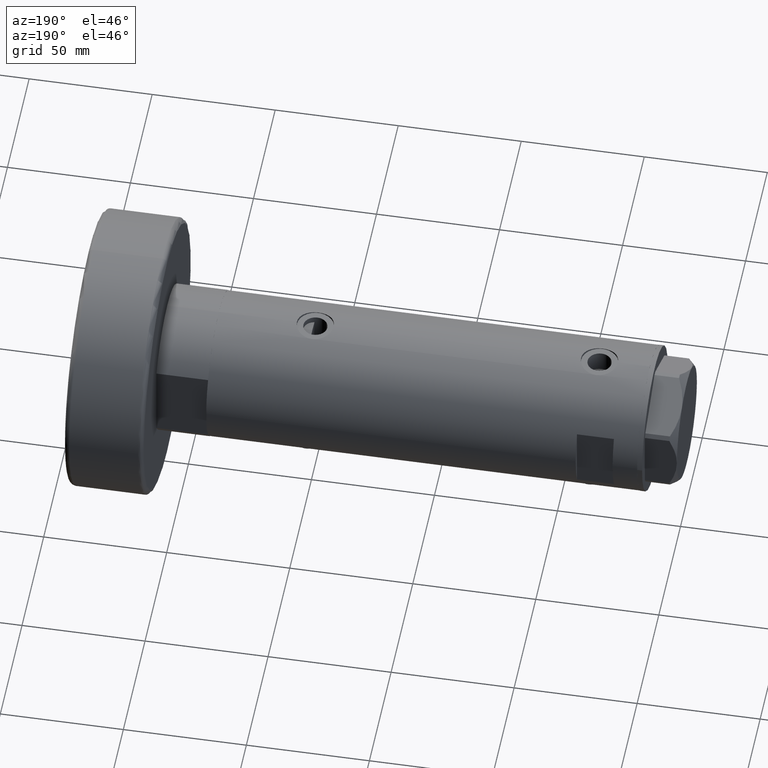
[diagram: clean part render]
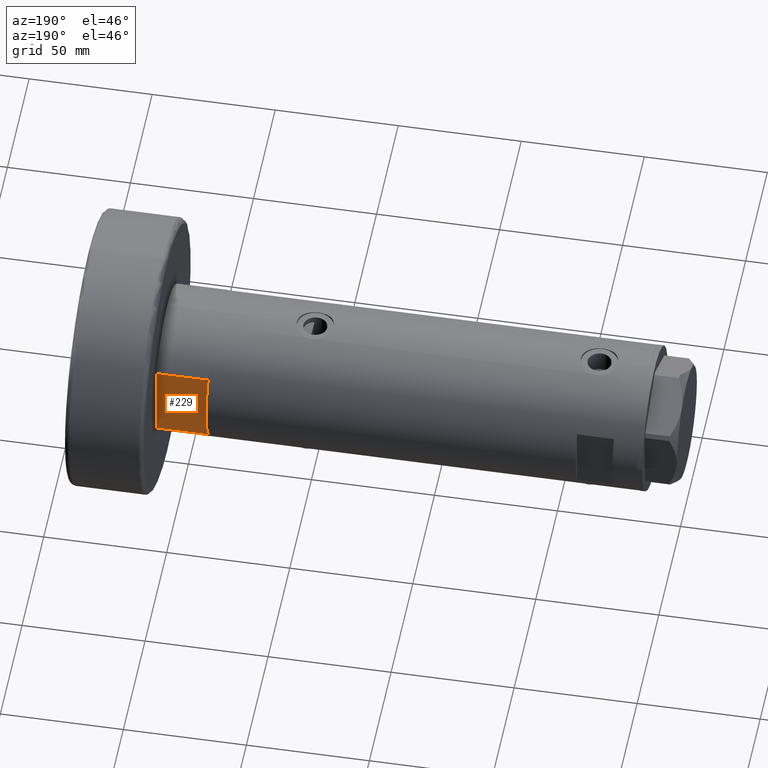
[diagram: same view with one face highlighted and labeled with its STEP entity id]
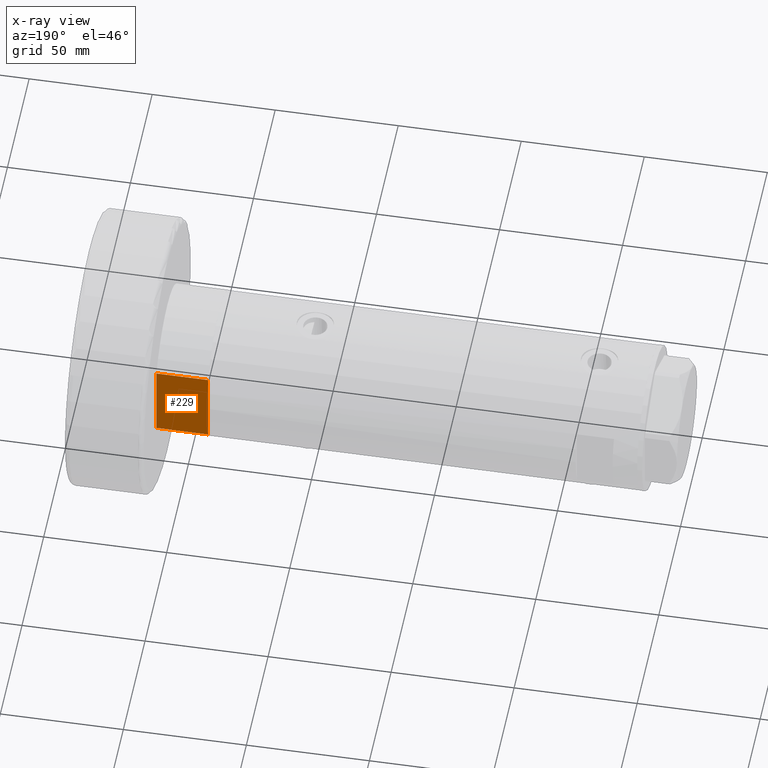
[diagram: x-ray of the same camera — body ghosted, the highlighted face saturated]
A machine part, auxiliary view. The second image highlights one B-rep face of the part: STEP entity #229.
The next image is the same camera in x-ray: the body ghosted, the highlighted face saturated — about 0% of this face is hidden behind the body in this view.
In plain terms, the highlighted planar face has unit normal (0, -1, -0).
Its self-contained STEP definition (entity closure, byte-faithful):
#60 = LINE ( 'NONE', #4443, #4031 ) ;
#125 = VECTOR ( 'NONE', #1309, 1000.000000000000000 ) ;
#193 = LINE ( 'NONE', #933, #3519 ) ;
#229 = ADVANCED_FACE ( 'NONE', ( #1419 ), #261, .F. ) ;
#261 = PLANE ( 'NONE',  #2417 ) ;
#295 = CARTESIAN_POINT ( 'NONE',  ( -7.141428428542853091, 25.00000000000000000, 0.000000000000000000 ) ) ;
#313 = VERTEX_POINT ( 'NONE', #4791 ) ;
#517 = VERTEX_POINT ( 'NONE', #3954 ) ;
#544 = CARTESIAN_POINT ( 'NONE',  ( 15.66045976336583045, 24.99999999999999645, 20.99999999999999645 ) ) ;
#571 = EDGE_CURVE ( 'NONE', #4403, #2784, #2474, .T. ) ;
#741 = DIRECTION ( 'NONE',  ( -0.000000000000000000, -0.000000000000000000, 1.000000000000000000 ) ) ;
#900 = ORIENTED_EDGE ( 'NONE', *, *, #3151, .F. ) ;
#933 = CARTESIAN_POINT ( 'NONE',  ( -15.66045976336583401, 25.00000000000000000, 0.000000000000000000 ) ) ;
#982 = EDGE_CURVE ( 'NONE', #313, #3206, #2366, .T. ) ;
#1000 = ORIENTED_EDGE ( 'NONE', *, *, #571, .F. ) ;
#1208 = EDGE_LOOP ( 'NONE', ( #3860, #4338, #900, #1000, #2999, #1260 ) ) ;
#1243 = EDGE_CURVE ( 'NONE', #4253, #3206, #2741, .T. ) ;
#1260 = ORIENTED_EDGE ( 'NONE', *, *, #1765, .T. ) ;
#1309 = DIRECTION ( 'NONE',  ( -0.000000000000000000, -0.000000000000000000, 1.000000000000000000 ) ) ;
#1419 = FACE_OUTER_BOUND ( 'NONE', #1208, .T. ) ;
#1597 = CARTESIAN_POINT ( 'NONE',  ( -15.66045976336583401, 25.00000000000000000, 0.000000000000000000 ) ) ;
#1765 = EDGE_CURVE ( 'NONE', #517, #313, #60, .T. ) ;
#1805 = CARTESIAN_POINT ( 'NONE',  ( -15.66045976336583401, 25.00000000000000000, 0.000000000000000000 ) ) ;
#1987 = DIRECTION ( 'NONE',  ( 1.000000000000000000, 0.000000000000000000, 0.000000000000000000 ) ) ;
#2038 = DIRECTION ( 'NONE',  ( 1.000000000000000000, 0.000000000000000000, 0.000000000000000000 ) ) ;
#2074 = DIRECTION ( 'NONE',  ( 0.000000000000000000, -1.000000000000000000, 0.000000000000000000 ) ) ;
#2112 = VECTOR ( 'NONE', #1987, 1000.000000000000000 ) ;
#2366 = LINE ( 'NONE', #4677, #3946 ) ;
#2414 = DIRECTION ( 'NONE',  ( 1.000000000000000000, 0.000000000000000000, 0.000000000000000000 ) ) ;
#2417 = AXIS2_PLACEMENT_3D ( 'NONE', #3573, #2074, #3944 ) ;
#2454 = DIRECTION ( 'NONE',  ( 1.000000000000000000, 0.000000000000000000, 0.000000000000000000 ) ) ;
#2474 = LINE ( 'NONE', #1805, #2553 ) ;
#2553 = VECTOR ( 'NONE', #2454, 1000.000000000000000 ) ;
#2741 = LINE ( 'NONE', #3808, #125 ) ;
#2784 = VERTEX_POINT ( 'NONE', #3069 ) ;
#2999 = ORIENTED_EDGE ( 'NONE', *, *, #4640, .F. ) ;
#3069 = CARTESIAN_POINT ( 'NONE',  ( 7.141428428542853091, 25.00000000000000000, 0.000000000000000000 ) ) ;
#3151 = EDGE_CURVE ( 'NONE', #2784, #4253, #4183, .T. ) ;
#3206 = VERTEX_POINT ( 'NONE', #544 ) ;
#3519 = VECTOR ( 'NONE', #2038, 1000.000000000000000 ) ;
#3573 = CARTESIAN_POINT ( 'NONE',  ( -15.66045976336583401, 25.00000000000000000, 0.000000000000000000 ) ) ;
#3808 = CARTESIAN_POINT ( 'NONE',  ( 15.66045976336583401, 25.00000000000000000, 0.000000000000000000 ) ) ;
#3860 = ORIENTED_EDGE ( 'NONE', *, *, #982, .T. ) ;
#3944 = DIRECTION ( 'NONE',  ( 0.000000000000000000, -0.000000000000000000, -1.000000000000000000 ) ) ;
#3946 = VECTOR ( 'NONE', #2414, 1000.000000000000000 ) ;
#3954 = CARTESIAN_POINT ( 'NONE',  ( -15.66045976336583401, 25.00000000000000000, 0.000000000000000000 ) ) ;
#4031 = VECTOR ( 'NONE', #741, 1000.000000000000000 ) ;
#4183 = LINE ( 'NONE', #1597, #2112 ) ;
#4253 = VERTEX_POINT ( 'NONE', #4721 ) ;
#4338 = ORIENTED_EDGE ( 'NONE', *, *, #1243, .F. ) ;
#4403 = VERTEX_POINT ( 'NONE', #295 ) ;
#4443 = CARTESIAN_POINT ( 'NONE',  ( -15.66045976336583401, 25.00000000000000000, 0.000000000000000000 ) ) ;
#4640 = EDGE_CURVE ( 'NONE', #517, #4403, #193, .T. ) ;
#4677 = CARTESIAN_POINT ( 'NONE',  ( -15.66045976336583401, 25.00000000000000000, 21.00000000000000000 ) ) ;
#4721 = CARTESIAN_POINT ( 'NONE',  ( 15.66045976336582690, 25.00000000000000000, 0.000000000000000000 ) ) ;
#4791 = CARTESIAN_POINT ( 'NONE',  ( -15.66045976336583045, 24.99999999999999645, 21.00000000000000355 ) ) ;